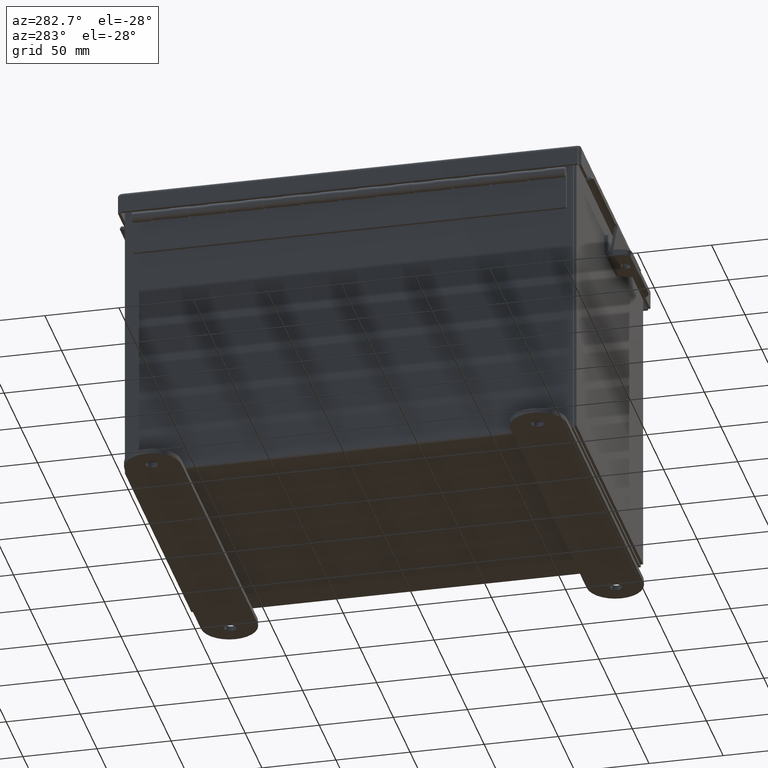
[diagram: clean part render]
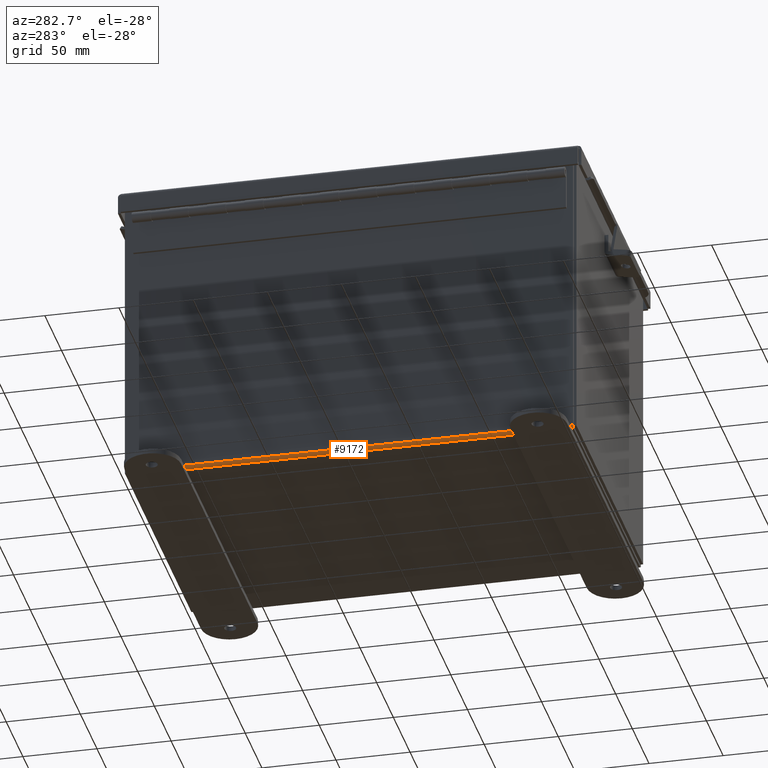
[diagram: same view with one face highlighted and labeled with its STEP entity id]
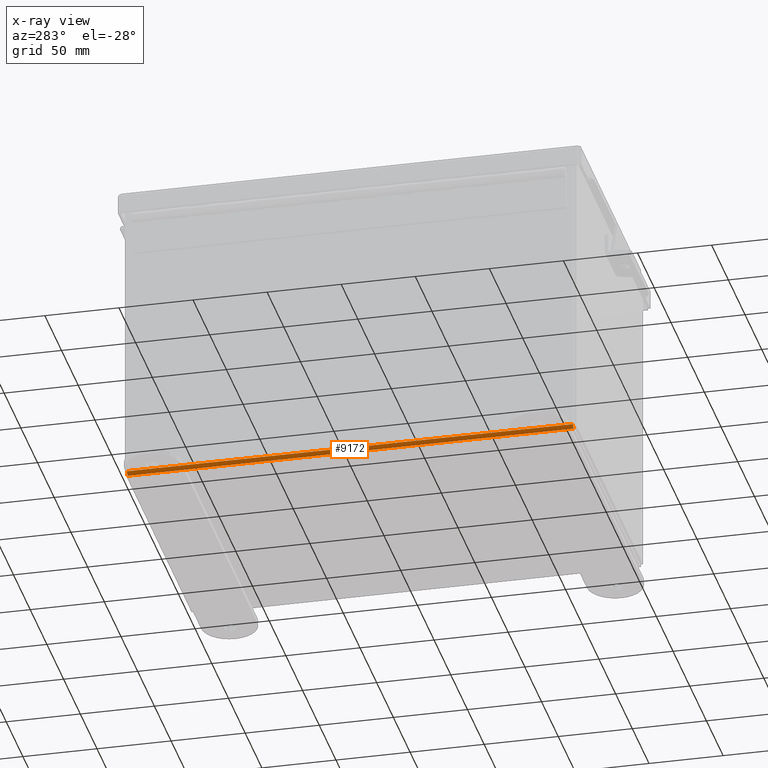
[diagram: x-ray of the same camera — body ghosted, the highlighted face saturated]
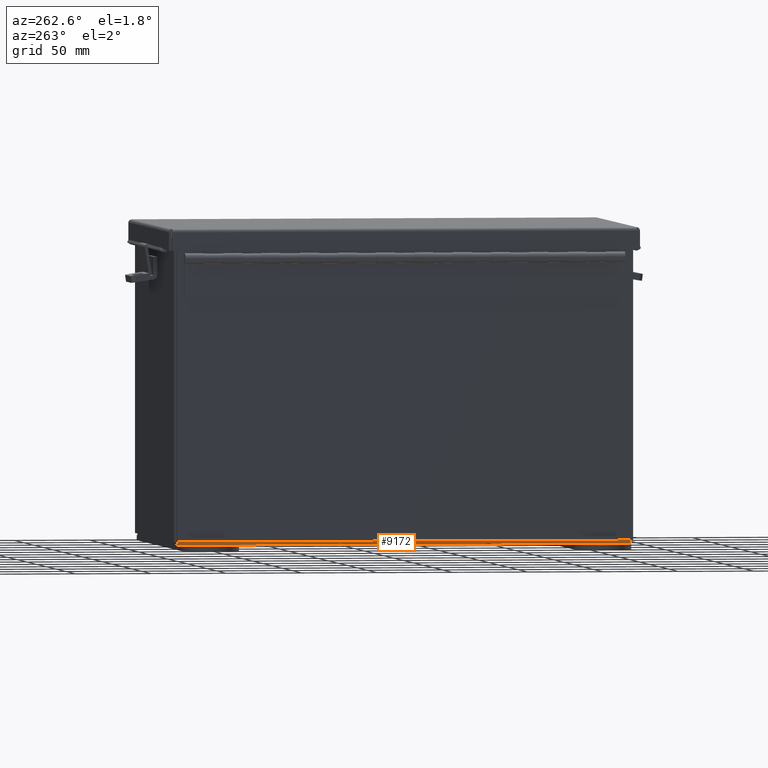
[diagram: same view with one face highlighted and labeled with its STEP entity id]
A machine part, auxiliary view. The second image highlights one B-rep face of the part: STEP entity #9172.
The next image is the same camera in x-ray: the body ghosted, the highlighted face saturated — about 0% of this face is hidden behind the body in this view.
A second angle (auxiliary view) of the same face is appended — the face is thin or edge-on in the first view.
In plain terms, the highlighted cylindrical surface (edge-blend (fillet) strip) has radius 2.2276 mm, axis along (0, -1, 0).
Its self-contained STEP definition (entity closure, byte-faithful):
#27 = AXIS2_PLACEMENT_3D ( 'NONE', #9590, #2272, #10797 ) ;
#213 = CIRCLE ( 'NONE', #6657, 0.08770000000000009700 ) ;
#391 = CARTESIAN_POINT ( 'NONE',  ( -3.912299999999998800, -5.925300000000000000, -0.07469999999999918400 ) ) ;
#502 = VERTEX_POINT ( 'NONE', #10009 ) ;
#1878 = ORIENTED_EDGE ( 'NONE', *, *, #7959, .F. ) ;
#2026 = DIRECTION ( 'NONE',  ( 1.604352766077962300E-031, 1.000000000000000000, -4.610480471308228800E-017 ) ) ;
#2272 = DIRECTION ( 'NONE',  ( -0.0000000000000000000, 1.000000000000000000, -8.208677865577646300E-017 ) ) ;
#2665 = DIRECTION ( 'NONE',  ( 0.0000000000000000000, -1.000000000000000000, 8.208677865577646300E-017 ) ) ;
#2729 = VECTOR ( 'NONE', #7701, 39.37007874015748100 ) ;
#3440 = CARTESIAN_POINT ( 'NONE',  ( -3.999999999999998700, 5.925300000000000000, 0.01299999999999963700 ) ) ;
#3772 = CARTESIAN_POINT ( 'NONE',  ( -3.912299999999998800, -5.925299999999999100, 0.01300000000000091900 ) ) ;
#3901 = CARTESIAN_POINT ( 'NONE',  ( -3.912299999999998800, -5.925300000000000000, 0.01300000000000091900 ) ) ;
#3905 = CARTESIAN_POINT ( 'NONE',  ( -3.912299999999998800, -5.925299999999999100, -0.07469999999999918400 ) ) ;
#5003 = DIRECTION ( 'NONE',  ( 0.0000000000000000000, 0.0000000000000000000, -1.000000000000000000 ) ) ;
#5167 = ORIENTED_EDGE ( 'NONE', *, *, #15026, .F. ) ;
#5720 = EDGE_CURVE ( 'NONE', #13160, #8545, #13396, .T. ) ;
#5760 = CARTESIAN_POINT ( 'NONE',  ( -3.999999999999998700, -5.925299999999999100, 0.01300000000000039000 ) ) ;
#6121 = VECTOR ( 'NONE', #2026, 39.37007874015748100 ) ;
#6657 = AXIS2_PLACEMENT_3D ( 'NONE', #3772, #12310, #5003 ) ;
#6661 = ORIENTED_EDGE ( 'NONE', *, *, #14420, .F. ) ;
#6816 = CIRCLE ( 'NONE', #27, 0.08770000000000009700 ) ;
#7357 = CYLINDRICAL_SURFACE ( 'NONE', #7822, 0.08770000000000026400 ) ;
#7701 = DIRECTION ( 'NONE',  ( -0.0000000000000000000, 1.000000000000000000, -8.208677865577646300E-017 ) ) ;
#7822 = AXIS2_PLACEMENT_3D ( 'NONE', #3901, #2665, #14826 ) ;
#7959 = EDGE_CURVE ( 'NONE', #502, #8545, #6816, .T. ) ;
#8545 = VERTEX_POINT ( 'NONE', #3440 ) ;
#9172 = ADVANCED_FACE ( 'NONE', ( #13857 ), #7357, .T. ) ;
#9590 = CARTESIAN_POINT ( 'NONE',  ( -3.912299999999998800, 5.925300000000000000, 0.01299999999999994600 ) ) ;
#10009 = CARTESIAN_POINT ( 'NONE',  ( -3.912299999999998800, 5.925300000000000000, -0.07470000000000000300 ) ) ;
#10291 = ORIENTED_EDGE ( 'NONE', *, *, #5720, .T. ) ;
#10797 = DIRECTION ( 'NONE',  ( 0.0000000000000000000, 0.0000000000000000000, -1.000000000000000000 ) ) ;
#11728 = CARTESIAN_POINT ( 'NONE',  ( -3.999999999999998700, 5.925300000000000000, 0.01299999999999984300 ) ) ;
#12310 = DIRECTION ( 'NONE',  ( 0.0000000000000000000, -1.000000000000000000, 8.208677865577646300E-017 ) ) ;
#12465 = LINE ( 'NONE', #391, #2729 ) ;
#13160 = VERTEX_POINT ( 'NONE', #5760 ) ;
#13396 = LINE ( 'NONE', #11728, #6121 ) ;
#13857 = FACE_OUTER_BOUND ( 'NONE', #15252, .T. ) ;
#14420 = EDGE_CURVE ( 'NONE', #13160, #15566, #213, .T. ) ;
#14826 = DIRECTION ( 'NONE',  ( -1.000000000000000000, 0.0000000000000000000, -3.480030137311043200E-015 ) ) ;
#15026 = EDGE_CURVE ( 'NONE', #15566, #502, #12465, .T. ) ;
#15252 = EDGE_LOOP ( 'NONE', ( #5167, #6661, #10291, #1878 ) ) ;
#15566 = VERTEX_POINT ( 'NONE', #3905 ) ;